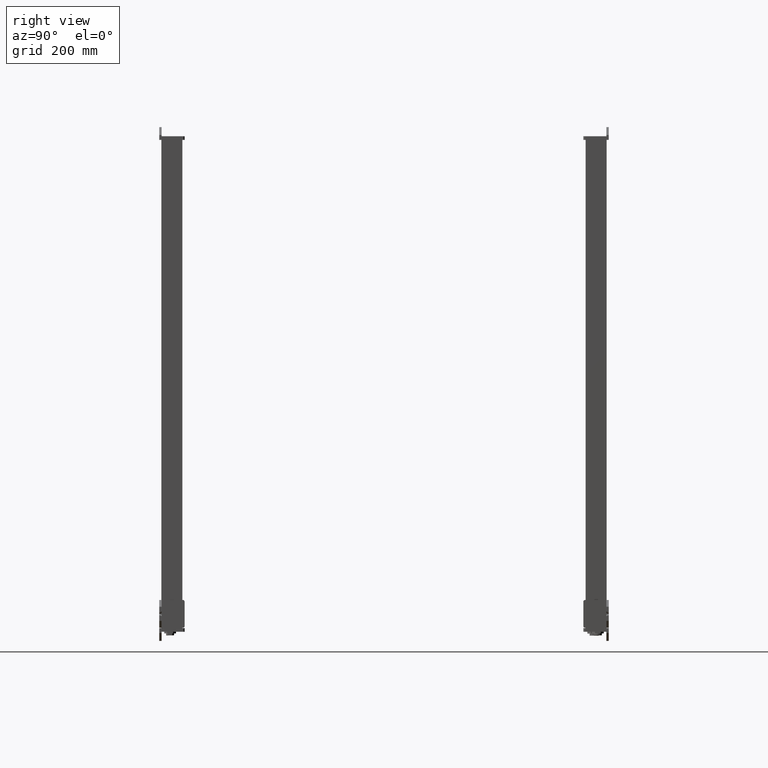
[diagram: clean part render]
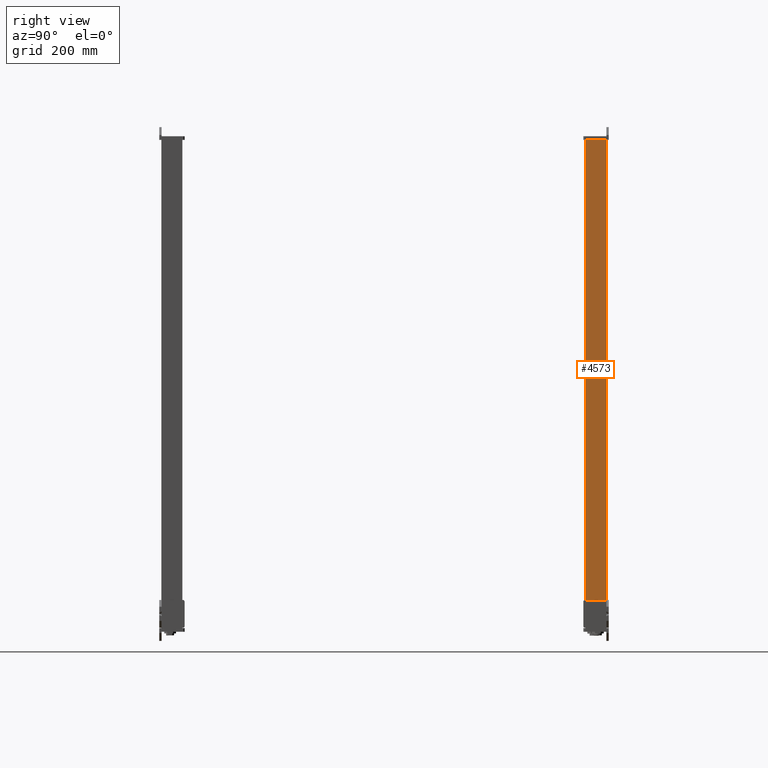
[diagram: same view with one face highlighted and labeled with its STEP entity id]
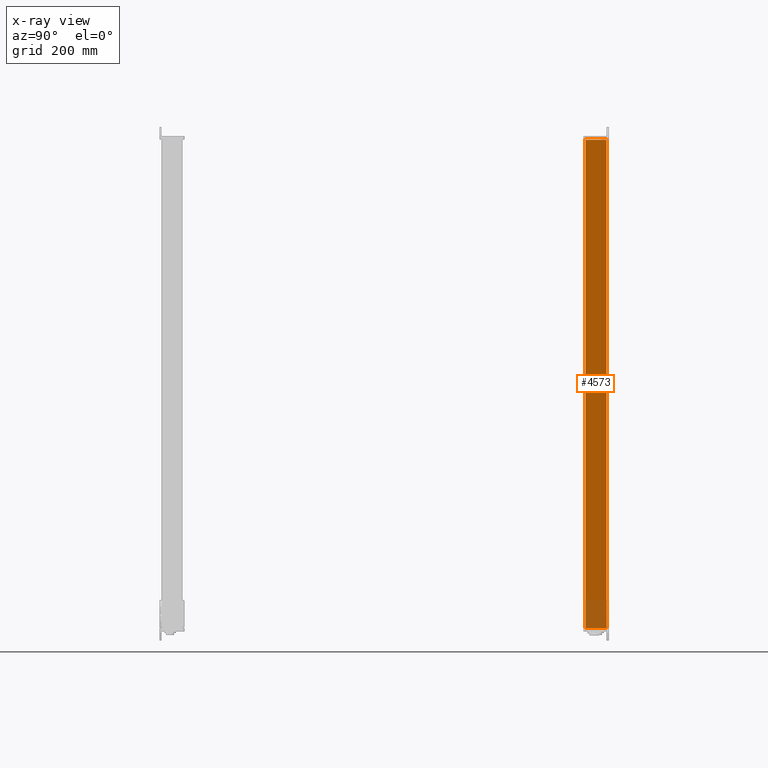
[diagram: x-ray of the same camera — body ghosted, the highlighted face saturated]
A machine part, right view. The second image highlights one B-rep face of the part: STEP entity #4573.
The next image is the same camera in x-ray: the body ghosted, the highlighted face saturated — about 6% of this face is hidden behind the body in this view.
In plain terms, the highlighted planar face has unit normal (1, 0, 0).
Its self-contained STEP definition (entity closure, byte-faithful):
#4336=CARTESIAN_POINT('Line Origine',(0.,0.,605.5)) ;
#4340=CARTESIAN_POINT('Vertex',(0.,0.,0.)) ;
#4342=CARTESIAN_POINT('Vertex',(0.,0.,1211.)) ;
#4530=CARTESIAN_POINT('Vertex',(3.5527136788E-015,52.,0.)) ;
#4533=CARTESIAN_POINT('Line Origine',(7.1054273576E-015,52.,605.5)) ;
#4537=CARTESIAN_POINT('Vertex',(3.5527136788E-015,52.,1211.)) ;
#4552=CARTESIAN_POINT('Axis2P3D Location',(0.,52.,0.)) ;
#4557=CARTESIAN_POINT('Line Origine',(0.,26.,0.)) ;
#4562=CARTESIAN_POINT('Line Origine',(0.,26.,1211.)) ;
#4337=DIRECTION('Vector Direction',(0.,0.,1.)) ;
#4534=DIRECTION('Vector Direction',(0.,0.,1.)) ;
#4553=DIRECTION('Axis2P3D Direction',(-1.,0.,0.)) ;
#4554=DIRECTION('Axis2P3D XDirection',(0.,-1.,0.)) ;
#4558=DIRECTION('Vector Direction',(0.,-1.,0.)) ;
#4563=DIRECTION('Vector Direction',(0.,-1.,0.)) ;
#4555=AXIS2_PLACEMENT_3D('Plane Axis2P3D',#4552,#4553,#4554) ;
#4568=ORIENTED_EDGE('',*,*,#4539,.F.) ;
#4569=ORIENTED_EDGE('',*,*,#4561,.T.) ;
#4570=ORIENTED_EDGE('',*,*,#4344,.T.) ;
#4571=ORIENTED_EDGE('',*,*,#4566,.F.) ;
#4338=VECTOR('Line Direction',#4337,1.) ;
#4535=VECTOR('Line Direction',#4534,1.) ;
#4559=VECTOR('Line Direction',#4558,1.) ;
#4564=VECTOR('Line Direction',#4563,1.) ;
#4573=ADVANCED_FACE('PartBody',(#4572),#4556,.T.) ;
#4344=EDGE_CURVE('',#4341,#4343,#4339,.T.) ;
#4539=EDGE_CURVE('',#4531,#4538,#4536,.T.) ;
#4561=EDGE_CURVE('',#4531,#4341,#4560,.T.) ;
#4566=EDGE_CURVE('',#4538,#4343,#4565,.T.) ;
#4567=EDGE_LOOP('',(#4568,#4569,#4570,#4571)) ;
#4572=FACE_OUTER_BOUND('',#4567,.T.) ;
#4339=LINE('Line',#4336,#4338) ;
#4536=LINE('Line',#4533,#4535) ;
#4560=LINE('Line',#4557,#4559) ;
#4565=LINE('Line',#4562,#4564) ;
#4556=PLANE('Plane',#4555) ;
#4341=VERTEX_POINT('',#4340) ;
#4343=VERTEX_POINT('',#4342) ;
#4531=VERTEX_POINT('',#4530) ;
#4538=VERTEX_POINT('',#4537) ;